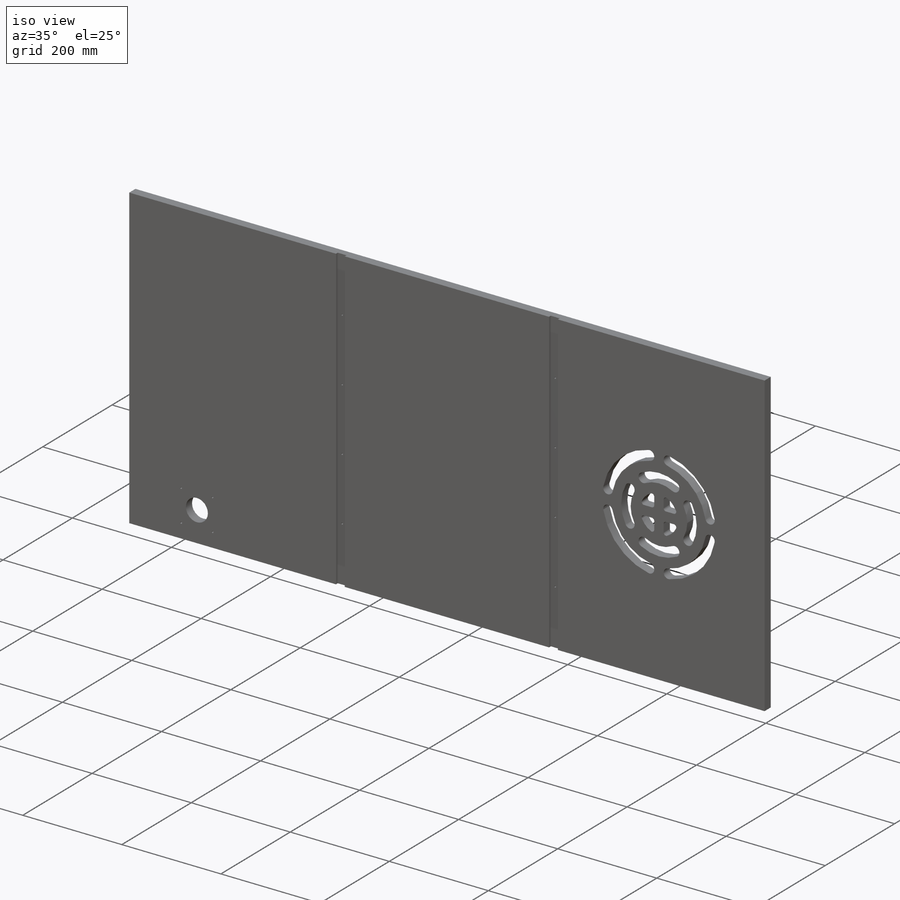
[diagram: iso view]
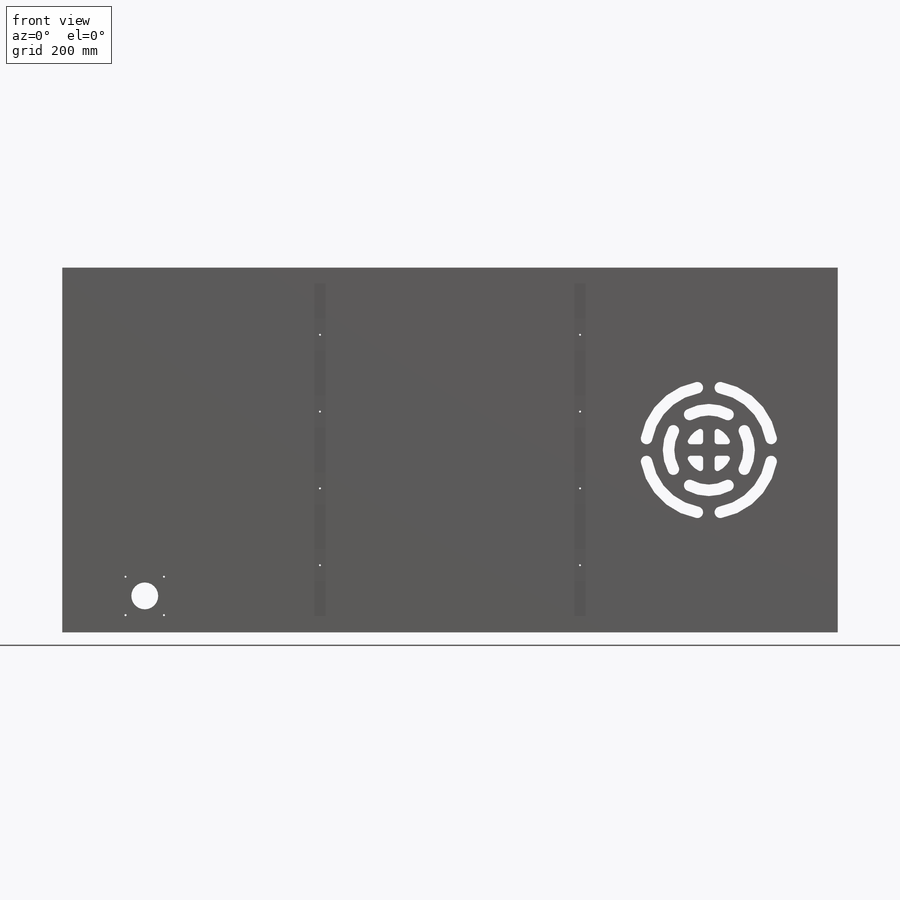
[diagram: front view]
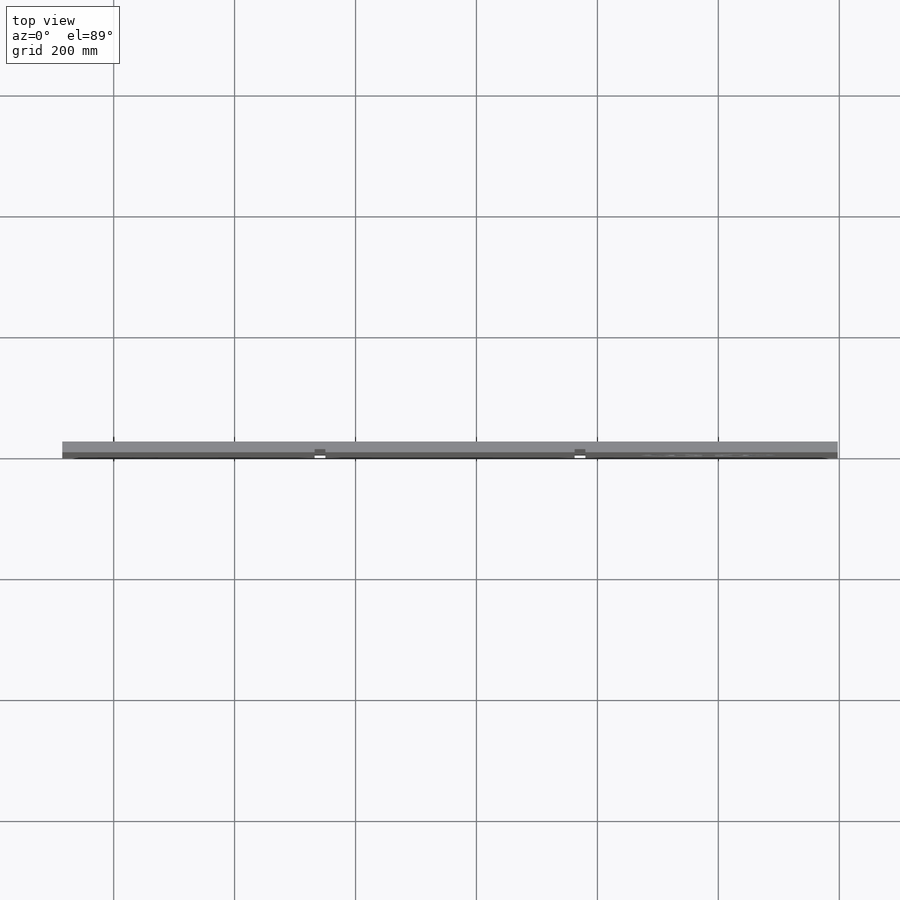
[diagram: top view]
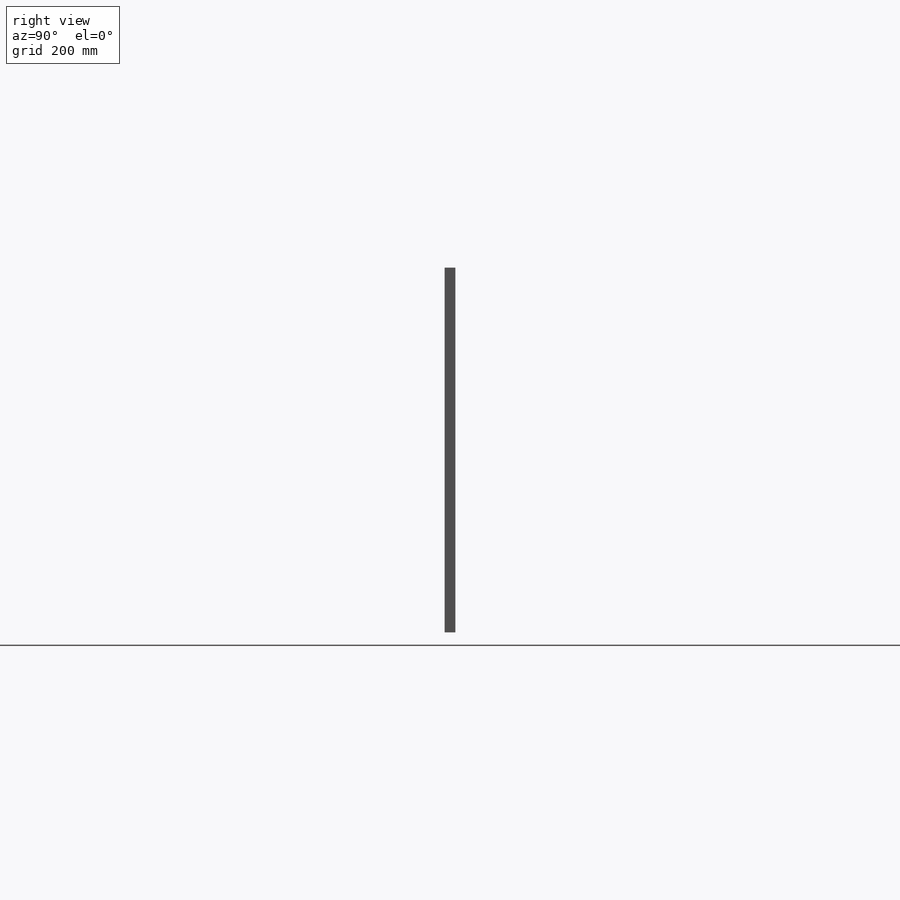
[diagram: right view]
SOLIDWORKS PART (.sldprt)
format: sldprt  version: not decoded by parser v0  size: 2,704,896 bytes
history: native  units: mm
features: sketch x4, cut_extrude x2, material x1, extrude x1 + 1 further entry (+15 scaffold rows collapsed)
feature tree (24):
  scaffold x15  (default folders/planes/origin — collapsed)
  material  "Pine"
  "Design Table"
  sketch  "Sketch1"
  sketch  "CabBottom_Outline"  dims[CabBottom_Width=603.25mm CabBottom_Length=1282.7mm]
  extrude  "CabBottom_Thickness"  Depth=17.78mm
  sketch  "Sketch4"  dims[D1=60.325mm D2=136.525mm D3=~44.901281mm D4=~44.901281mm]
  cut_extrude  "Cut-Extrude1"  [1 undecoded]
  sketch  "BraceCuts"  dims[BraceThickness_1=17.78mm Brace_Thickness_2=17.78mm]
  cut_extrude  "BraceCuts_Depth"  Depth=5.08mm
decode coverage: 5 of 7 modeling features carry decoded parameters; 1 rows unclassified (native names shown)
note: ~ marks probable driven/reference dimensions
note: 1 parameter value undecoded
note: suppression state not decoded; provenance and decode notes live in map.json
